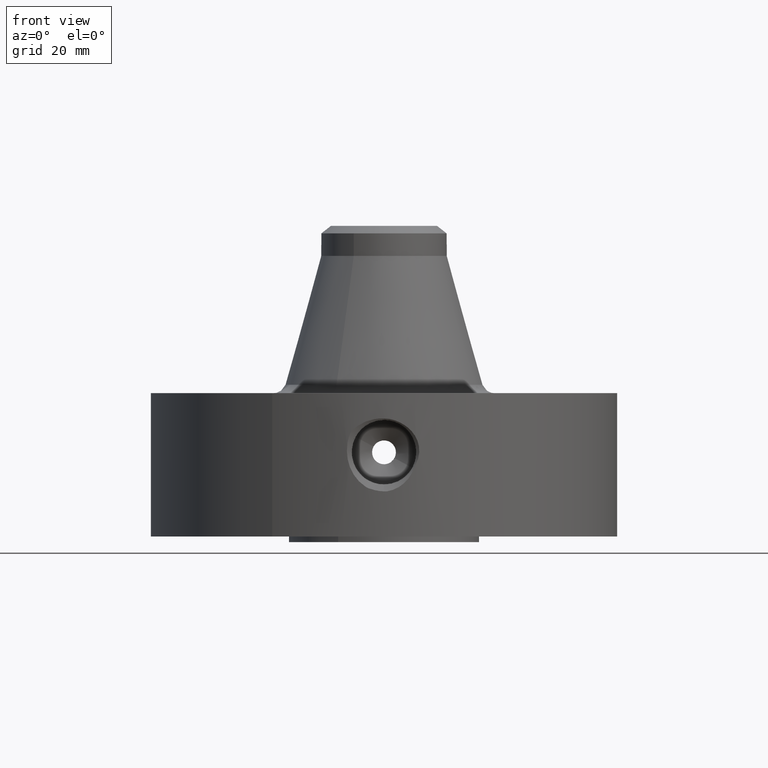
[diagram: clean part render]
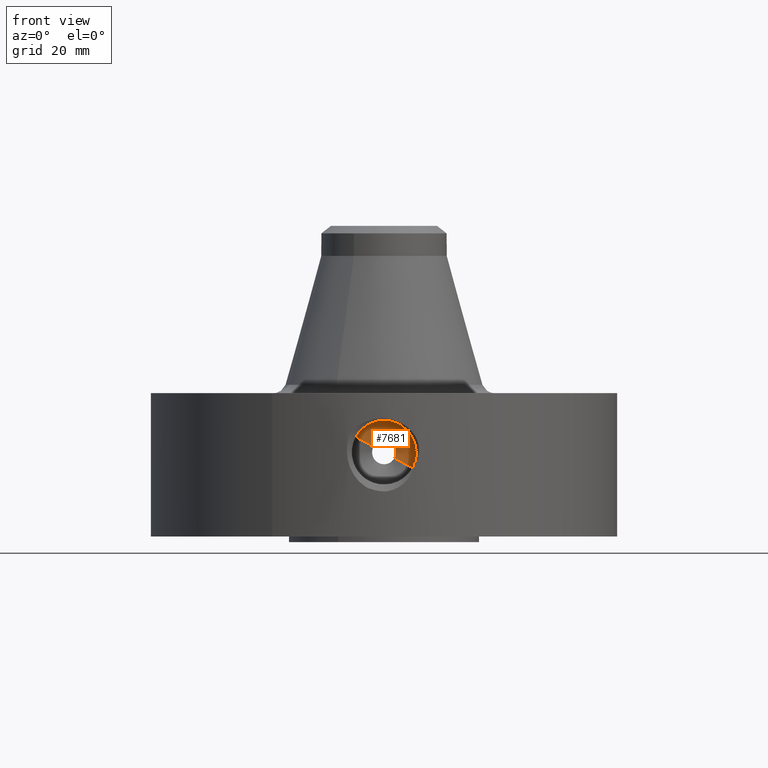
[diagram: same view with one face highlighted and labeled with its STEP entity id]
A machine part, front view. The second image highlights one B-rep face of the part: STEP entity #7681.
In plain terms, the highlighted conical surface has half-angle 60 deg.
Its self-contained STEP definition (entity closure, byte-faithful):
#4103=AXIS2_PLACEMENT_3D('Circle Axis2P3D',#4101,#4102,$) ;
#7654=AXIS2_PLACEMENT_3D('Cone Axis2P3D',#7651,#7652,#7653) ;
#7665=AXIS2_PLACEMENT_3D('Circle Axis2P3D',#7663,#7664,$) ;
#4098=CARTESIAN_POINT('Vertex',(0.109697820237,-1.44321662097,0.880071807678)) ;
#4101=CARTESIAN_POINT('Axis2P3D Location',(-9.66350983644E-017,-1.44321662097,0.940000000004)) ;
#4105=CARTESIAN_POINT('Vertex',(-0.109697820237,-1.44321662097,0.99992819233)) ;
#7651=CARTESIAN_POINT('Axis2P3D Location',(-9.66350983644E-017,-1.44321662097,0.940000000004)) ;
#7656=CARTESIAN_POINT('Line Origine',(0.202254259083,-1.50410831049,0.829507994685)) ;
#7660=CARTESIAN_POINT('Vertex',(0.29481069793,-1.56500000001,0.778944181692)) ;
#7663=CARTESIAN_POINT('Axis2P3D Location',(-1.19006342162E-016,-1.56500000001,0.940000000004)) ;
#7667=CARTESIAN_POINT('Vertex',(-0.29481069793,-1.56500000001,1.10105581832)) ;
#7670=CARTESIAN_POINT('Line Origine',(-0.202254259083,-1.50410831049,1.05049200532)) ;
#4102=DIRECTION('Axis2P3D Direction',(7.2321661367E-018,0.0393700787402,0.)) ;
#7652=DIRECTION('Axis2P3D Direction',(-7.2321661367E-018,-0.0393700787402,0.)) ;
#7653=DIRECTION('Axis2P3D XDirection',(-0.0345504945626,4.23385151202E-018,0.0188750212049)) ;
#7657=DIRECTION('Vector Direction',(0.0299216060045,-0.0196850393701,-0.0163462478604)) ;
#7664=DIRECTION('Axis2P3D Direction',(-7.2321661367E-018,-0.0393700787402,0.)) ;
#7671=DIRECTION('Vector Direction',(-0.0299216060045,-0.0196850393701,0.0163462478604)) ;
#7658=VECTOR('Line Direction',#7657,0.0393700787402) ;
#7672=VECTOR('Line Direction',#7671,0.0393700787402) ;
#7676=ORIENTED_EDGE('',*,*,#7662,.T.) ;
#7677=ORIENTED_EDGE('',*,*,#7669,.F.) ;
#7678=ORIENTED_EDGE('',*,*,#7674,.F.) ;
#7679=ORIENTED_EDGE('',*,*,#4107,.T.) ;
#7681=ADVANCED_FACE('PartBody',(#7680),#7655,.F.) ;
#4104=CIRCLE('generated circle',#4103,0.125000000001) ;
#7666=CIRCLE('generated circle',#7665,0.335935000001) ;
#7655=CONICAL_SURFACE('Cone',#7654,0.125,1.0471975512) ;
#4107=EDGE_CURVE('',#4106,#4099,#4104,.T.) ;
#7662=EDGE_CURVE('',#4099,#7661,#7659,.T.) ;
#7669=EDGE_CURVE('',#7668,#7661,#7666,.F.) ;
#7674=EDGE_CURVE('',#4106,#7668,#7673,.T.) ;
#7675=EDGE_LOOP('',(#7676,#7677,#7678,#7679)) ;
#7680=FACE_OUTER_BOUND('',#7675,.T.) ;
#7659=LINE('Line',#7656,#7658) ;
#7673=LINE('Line',#7670,#7672) ;
#4099=VERTEX_POINT('',#4098) ;
#4106=VERTEX_POINT('',#4105) ;
#7661=VERTEX_POINT('',#7660) ;
#7668=VERTEX_POINT('',#7667) ;